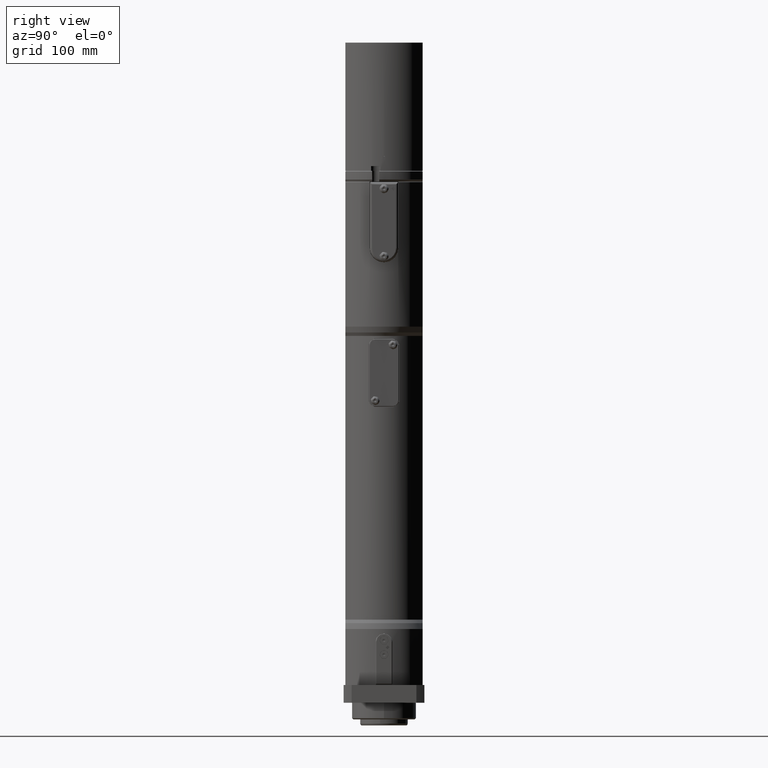
[diagram: clean part render]
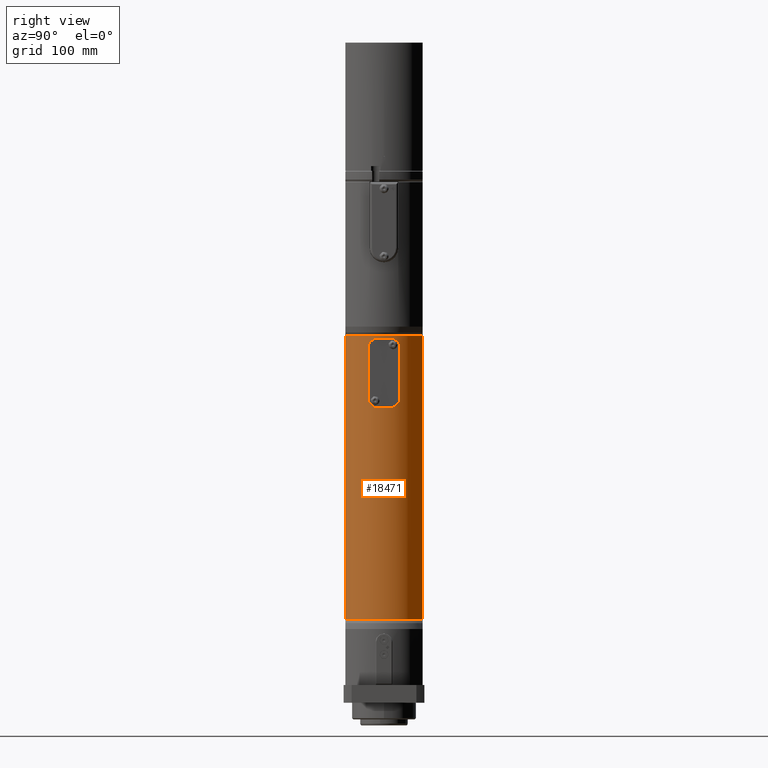
[diagram: same view with one face highlighted and labeled with its STEP entity id]
A machine part, right view. The second image highlights one B-rep face of the part: STEP entity #18471.
In plain terms, the highlighted cylindrical surface (partial cylindrical patch) has radius 34 mm, axis along (0, 0, 1).
Its self-contained STEP definition (entity closure, byte-faithful):
#1611=FACE_BOUND('',#4774,.T.);
#2019=CIRCLE('',#19887,34.);
#2020=CIRCLE('',#19888,34.);
#2021=CIRCLE('',#19889,34.);
#2022=CIRCLE('',#19890,34.);
#2715=CYLINDRICAL_SURFACE('',#19886,34.);
#2992=B_SPLINE_CURVE_WITH_KNOTS('',3,(#31595,#31596,#31597,#31598,#31599,
#31600,#31601,#31602,#31603,#31604),.UNSPECIFIED.,.F.,.F.,(4,2,2,2,4),(0.759588469608742,
0.956878938092134,1.15416940657553,1.34292940252404,1.53168939847256),
 .UNSPECIFIED.);
#2993=B_SPLINE_CURVE_WITH_KNOTS('',3,(#31608,#31609,#31610,#31611,#31612,
#31613,#31614,#31615,#31616,#31617),.UNSPECIFIED.,.F.,.F.,(4,2,2,2,4),(1.53168907801242,
1.72044907396094,1.90920906990946,2.10649953839285,2.30379000687624),
 .UNSPECIFIED.);
#2994=B_SPLINE_CURVE_WITH_KNOTS('',3,(#31621,#31622,#31623,#31624,#31625,
#31626,#31627,#31628,#31629,#31630),.UNSPECIFIED.,.F.,.F.,(4,2,2,2,4),(-0.772100928863819,
-0.574810460380427,-0.377519991897035,-0.188759995948518,0.),
 .UNSPECIFIED.);
#2995=B_SPLINE_CURVE_WITH_KNOTS('',3,(#31633,#31634,#31635,#31636,#31637,
#31638,#31639,#31640,#31641,#31642),.UNSPECIFIED.,.F.,.F.,(4,2,2,2,4),(0.,
0.188759995948518,0.377519991897035,0.574810460380427,0.772100928863819),
 .UNSPECIFIED.);
#3560=FACE_OUTER_BOUND('',#4773,.T.);
#4773=EDGE_LOOP('',(#14327,#14328,#14329,#14330));
#4774=EDGE_LOOP('',(#14331,#14332,#14333,#14334,#14335,#14336,#14337,#14338));
#6156=LINE('',#31585,#7469);
#6157=LINE('',#31589,#7470);
#6158=LINE('',#31606,#7471);
#6159=LINE('',#31632,#7472);
#7469=VECTOR('',#23179,239.);
#7470=VECTOR('',#23182,239.);
#7471=VECTOR('',#23187,48.);
#7472=VECTOR('',#23190,48.);
#8932=VERTEX_POINT('',#31583);
#8933=VERTEX_POINT('',#31584);
#8934=VERTEX_POINT('',#31586);
#8935=VERTEX_POINT('',#31588);
#8936=VERTEX_POINT('',#31591);
#8937=VERTEX_POINT('',#31592);
#8938=VERTEX_POINT('',#31594);
#8939=VERTEX_POINT('',#31605);
#8940=VERTEX_POINT('',#31607);
#8941=VERTEX_POINT('',#31618);
#8942=VERTEX_POINT('',#31620);
#8943=VERTEX_POINT('',#31631);
#10904=EDGE_CURVE('',#8932,#8933,#6156,.T.);
#10905=EDGE_CURVE('',#8934,#8933,#2019,.T.);
#10906=EDGE_CURVE('',#8934,#8935,#6157,.T.);
#10907=EDGE_CURVE('',#8932,#8935,#2020,.T.);
#10908=EDGE_CURVE('',#8936,#8937,#2021,.T.);
#10909=EDGE_CURVE('',#8937,#8938,#2992,.T.);
#10910=EDGE_CURVE('',#8938,#8939,#6158,.T.);
#10911=EDGE_CURVE('',#8939,#8940,#2993,.T.);
#10912=EDGE_CURVE('',#8940,#8941,#2022,.T.);
#10913=EDGE_CURVE('',#8941,#8942,#2994,.T.);
#10914=EDGE_CURVE('',#8942,#8943,#6159,.T.);
#10915=EDGE_CURVE('',#8943,#8936,#2995,.T.);
#14327=ORIENTED_EDGE('',*,*,#10904,.T.);
#14328=ORIENTED_EDGE('',*,*,#10905,.F.);
#14329=ORIENTED_EDGE('',*,*,#10906,.T.);
#14330=ORIENTED_EDGE('',*,*,#10907,.F.);
#14331=ORIENTED_EDGE('',*,*,#10908,.T.);
#14332=ORIENTED_EDGE('',*,*,#10909,.T.);
#14333=ORIENTED_EDGE('',*,*,#10910,.T.);
#14334=ORIENTED_EDGE('',*,*,#10911,.T.);
#14335=ORIENTED_EDGE('',*,*,#10912,.T.);
#14336=ORIENTED_EDGE('',*,*,#10913,.T.);
#14337=ORIENTED_EDGE('',*,*,#10914,.T.);
#14338=ORIENTED_EDGE('',*,*,#10915,.T.);
#18471=ADVANCED_FACE('',(#3560,#1611),#2715,.T.);
#19886=AXIS2_PLACEMENT_3D('',#31582,#23177,#23178);
#19887=AXIS2_PLACEMENT_3D('',#31587,#23180,#23181);
#19888=AXIS2_PLACEMENT_3D('',#31590,#23183,#23184);
#19889=AXIS2_PLACEMENT_3D('',#31593,#23185,#23186);
#19890=AXIS2_PLACEMENT_3D('',#31619,#23188,#23189);
#23177=DIRECTION('center_axis',(0.,0.,1.));
#23178=DIRECTION('ref_axis',(-1.,0.,0.));
#23179=DIRECTION('',(0.,0.,1.));
#23180=DIRECTION('center_axis',(0.,0.,1.));
#23181=DIRECTION('ref_axis',(-1.,0.,0.));
#23182=DIRECTION('',(0.,0.,-1.));
#23183=DIRECTION('center_axis',(0.,0.,-1.));
#23184=DIRECTION('ref_axis',(-1.,0.,0.));
#23185=DIRECTION('center_axis',(0.,0.,1.));
#23186=DIRECTION('ref_axis',(-1.,0.,0.));
#23187=DIRECTION('',(0.,0.,-1.));
#23188=DIRECTION('center_axis',(0.,0.,-1.));
#23189=DIRECTION('ref_axis',(-1.,0.,0.));
#23190=DIRECTION('',(0.,0.,1.));
#31582=CARTESIAN_POINT('Origin',(0.,0.,84.));
#31583=CARTESIAN_POINT('',(9.98749217771911,32.5,84.));
#31584=CARTESIAN_POINT('',(9.98749217771911,32.5,323.));
#31585=CARTESIAN_POINT('',(9.98749217771911,32.5,84.));
#31586=CARTESIAN_POINT('',(9.98749217771903,-32.5,323.));
#31587=CARTESIAN_POINT('Origin',(0.,0.,323.));
#31588=CARTESIAN_POINT('',(9.98749217771903,-32.5,84.));
#31589=CARTESIAN_POINT('',(9.98749217771903,-32.5,84.));
#31590=CARTESIAN_POINT('Origin',(0.,0.,84.));
#31591=CARTESIAN_POINT('',(33.0454232837166,-8.,321.));
#31592=CARTESIAN_POINT('',(33.0454232837166,8.,321.));
#31593=CARTESIAN_POINT('Origin',(0.,0.,321.));
#31594=CARTESIAN_POINT('',(31.41655614481,13.,316.));
#31595=CARTESIAN_POINT('Ctrl Pts',(33.0454232837166,8.,321.));
#31596=CARTESIAN_POINT('Ctrl Pts',(32.8906856613767,8.6391712785173,321.));
#31597=CARTESIAN_POINT('Ctrl Pts',(32.7052635615763,9.31594182220457,320.870454557452));
#31598=CARTESIAN_POINT('Ctrl Pts',(32.325997565121,10.557031691372,320.349094030366));
#31599=CARTESIAN_POINT('Ctrl Pts',(32.1330572202445,11.1216973112429,319.95744646348));
#31600=CARTESIAN_POINT('Ctrl Pts',(31.8168900309405,11.9954968996403,319.067246149049));
#31601=CARTESIAN_POINT('Ctrl Pts',(31.670490360415,12.3714684569533,318.514907906374));
#31602=CARTESIAN_POINT('Ctrl Pts',(31.4696109492567,12.8738797601817,317.296067866827));
#31603=CARTESIAN_POINT('Ctrl Pts',(31.41655614481,13.,316.629199986495));
#31604=CARTESIAN_POINT('Ctrl Pts',(31.41655614481,13.,316.));
#31605=CARTESIAN_POINT('',(31.41655614481,13.,268.));
#31606=CARTESIAN_POINT('',(31.41655614481,13.,84.));
#31607=CARTESIAN_POINT('',(33.0454232837166,8.,263.));
#31608=CARTESIAN_POINT('Ctrl Pts',(31.41655614481,13.,268.));
#31609=CARTESIAN_POINT('Ctrl Pts',(31.41655614481,13.,267.370800013505));
#31610=CARTESIAN_POINT('Ctrl Pts',(31.4696109492567,12.8738797601816,266.703932133173));
#31611=CARTESIAN_POINT('Ctrl Pts',(31.670490360415,12.3714684569533,265.485092093626));
#31612=CARTESIAN_POINT('Ctrl Pts',(31.8168900309405,11.9954968996403,264.932753850951));
#31613=CARTESIAN_POINT('Ctrl Pts',(32.1330572202445,11.1216973112429,264.04255353652));
#31614=CARTESIAN_POINT('Ctrl Pts',(32.325997565121,10.5570316913719,263.650905969634));
#31615=CARTESIAN_POINT('Ctrl Pts',(32.7052635615763,9.3159418222046,263.129545442548));
#31616=CARTESIAN_POINT('Ctrl Pts',(32.8906856613767,8.6391712785173,263.));
#31617=CARTESIAN_POINT('Ctrl Pts',(33.0454232837166,8.,263.));
#31618=CARTESIAN_POINT('',(33.0454232837166,-8.,263.));
#31619=CARTESIAN_POINT('Origin',(0.,0.,263.));
#31620=CARTESIAN_POINT('',(31.41655614481,-13.,268.));
#31621=CARTESIAN_POINT('Ctrl Pts',(33.0454232837166,-8.,263.));
#31622=CARTESIAN_POINT('Ctrl Pts',(32.8906856613767,-8.6391712785173,263.));
#31623=CARTESIAN_POINT('Ctrl Pts',(32.7052635615763,-9.3159418222046,263.129545442548));
#31624=CARTESIAN_POINT('Ctrl Pts',(32.325997565121,-10.5570316913719,263.650905969634));
#31625=CARTESIAN_POINT('Ctrl Pts',(32.1330572202445,-11.1216973112429,264.04255353652));
#31626=CARTESIAN_POINT('Ctrl Pts',(31.8168900309405,-11.9954968996403,264.932753850951));
#31627=CARTESIAN_POINT('Ctrl Pts',(31.670490360415,-12.3714684569533,265.485092093626));
#31628=CARTESIAN_POINT('Ctrl Pts',(31.4696109492567,-12.8738797601816,266.703932133173));
#31629=CARTESIAN_POINT('Ctrl Pts',(31.41655614481,-13.,267.370800013505));
#31630=CARTESIAN_POINT('Ctrl Pts',(31.41655614481,-13.,268.));
#31631=CARTESIAN_POINT('',(31.41655614481,-13.,316.));
#31632=CARTESIAN_POINT('',(31.41655614481,-13.,84.));
#31633=CARTESIAN_POINT('Ctrl Pts',(31.41655614481,-13.,316.));
#31634=CARTESIAN_POINT('Ctrl Pts',(31.41655614481,-13.,316.629199986495));
#31635=CARTESIAN_POINT('Ctrl Pts',(31.4696109492567,-12.8738797601817,317.296067866827));
#31636=CARTESIAN_POINT('Ctrl Pts',(31.670490360415,-12.3714684569533,318.514907906374));
#31637=CARTESIAN_POINT('Ctrl Pts',(31.8168900309405,-11.9954968996403,319.067246149049));
#31638=CARTESIAN_POINT('Ctrl Pts',(32.1330572202445,-11.1216973112429,319.95744646348));
#31639=CARTESIAN_POINT('Ctrl Pts',(32.325997565121,-10.5570316913719,320.349094030366));
#31640=CARTESIAN_POINT('Ctrl Pts',(32.7052635615763,-9.31594182220457,320.870454557452));
#31641=CARTESIAN_POINT('Ctrl Pts',(32.8906856613767,-8.6391712785173,321.));
#31642=CARTESIAN_POINT('Ctrl Pts',(33.0454232837166,-8.,321.));